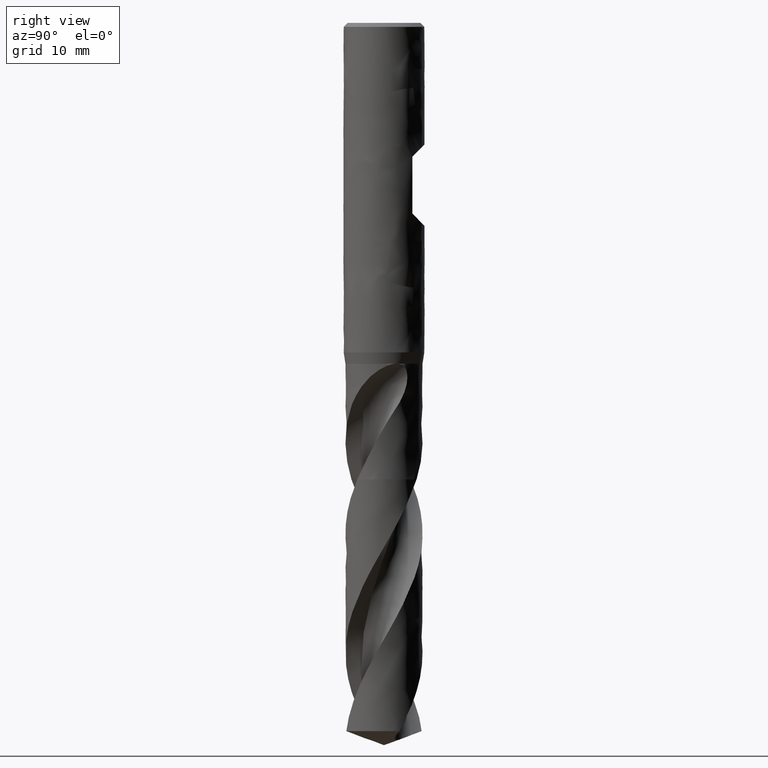
[diagram: clean part render]
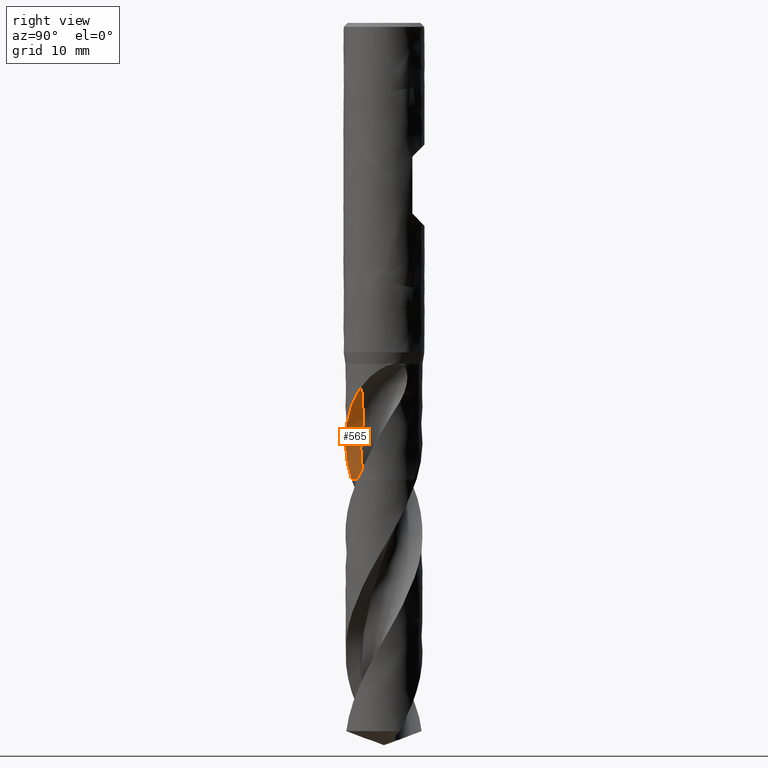
[diagram: same view with one face highlighted and labeled with its STEP entity id]
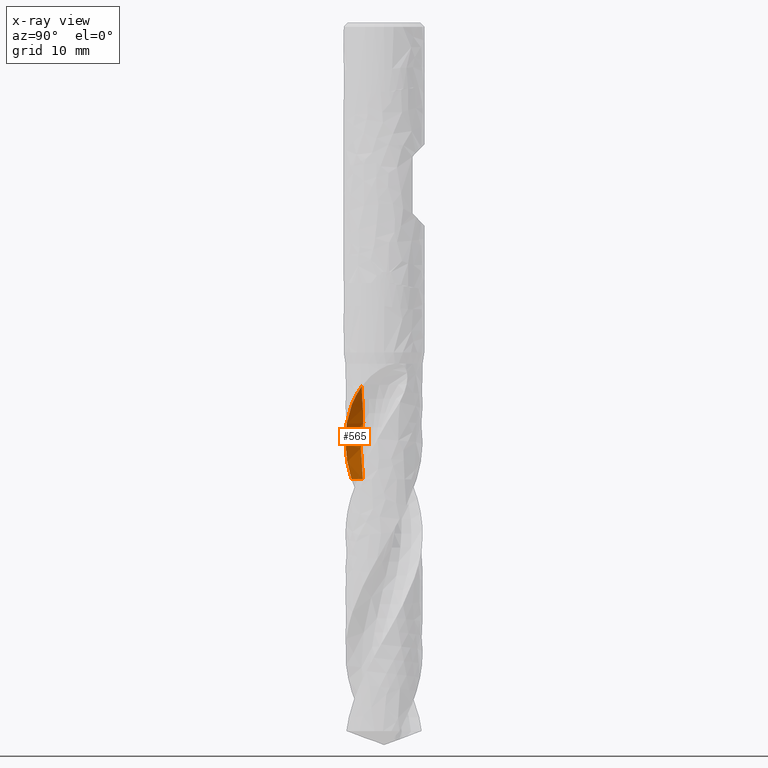
[diagram: x-ray of the same camera — body ghosted, the highlighted face saturated]
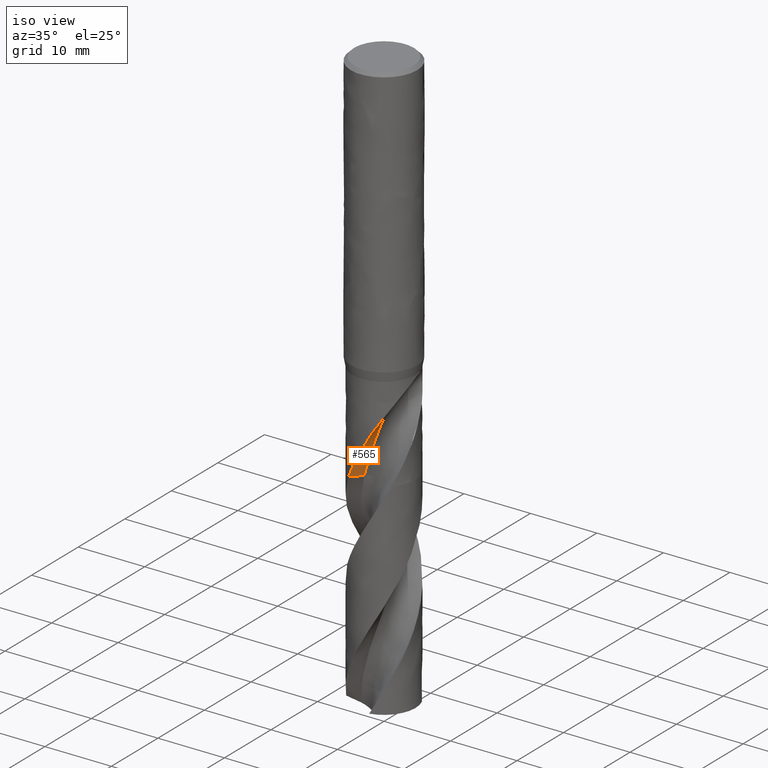
[diagram: same view with one face highlighted and labeled with its STEP entity id]
A machine part, right view. The second image highlights one B-rep face of the part: STEP entity #565.
The next image is the same camera in x-ray: the body ghosted, the highlighted face saturated — about 0% of this face is hidden behind the body in this view.
A second angle (iso view) of the same face is appended — the face is thin or edge-on in the first view.
In plain terms, the highlighted face is a freeform B-spline surface patch.
Its self-contained STEP definition (entity closure, byte-faithful):
#565 = ADVANCED_FACE('', (#566), #721, .T.);
#566 = FACE_OUTER_BOUND('', #567, .T.);
#567 = EDGE_LOOP('', (#568, #578, #600));
#568 = ORIENTED_EDGE('', *, *, #569, .T.);
#569 = EDGE_CURVE('', #570, #572, #574, .T.);
#570 = VERTEX_POINT('', #571);
#571 = CARTESIAN_POINT('', (-2.53960129941274, -4.01409083604508, -56.25));
#572 = VERTEX_POINT('', #573);
#573 = CARTESIAN_POINT('', (-1.16955191055371, -2.59206651483527, -56.25));
#574 = LINE('', #575, #576);
#575 = CARTESIAN_POINT('', (-2.53960129941274, -4.01409083604508, -56.25));
#576 = VECTOR('', #577, 1.97463629512506);
#577 = DIRECTION('', (1.37004938885903, 1.42202432120981, 0.));
#578 = ORIENTED_EDGE('', *, *, #579, .T.);
#579 = EDGE_CURVE('', #572, #580, #582, .T.);
#580 = VERTEX_POINT('', #581);
#581 = CARTESIAN_POINT('', (3.87500785970032, -2.74714653545469, -44.7950544550316));
#582 = (
   BOUNDED_CURVE ()
   B_SPLINE_CURVE (3, (#583, #584, #585, #586, #587, #588, #589, #590, #591, #592, #593, #594, #595, #596, #597, #598, #599), .UNSPECIFIED., .F., .U.)
   B_SPLINE_CURVE_WITH_KNOTS ((4, 1, 1, 1, 1, 1, 1, 1, 1, 1, 1, 1, 1, 1, 4), (32.8, 33.1233333333333, 33.995, 34.8666666666667, 35.7383333333333, 36.61, 37.4816666666667, 38.3533333333333, 39.225, 40.0966666666667, 40.9683333333333, 41.84, 42.7116666666667, 43.5833333333333, 44.2549455449684), .UNSPECIFIED.)
   CURVE ()
   GEOMETRIC_REPRESENTATION_ITEM ()
   RATIONAL_B_SPLINE_CURVE ((1., 1., 1., 1., 1., 1., 1., 1., 1., 1., 1., 1., 1., 1., 1., 1., 1.))
   REPRESENTATION_ITEM ('')
);
#583 = CARTESIAN_POINT('', (-1.16955191055371, -2.59206651483527, -56.25));
#584 = CARTESIAN_POINT('', (-1.13631998266035, -2.60805889382268, -56.1422222222222));
#585 = CARTESIAN_POINT('', (-1.01230462373892, -2.66484629329886, -55.7438888888889));
#586 = CARTESIAN_POINT('', (-0.790749504277909, -2.74798836898601, -55.055));
#587 = CARTESIAN_POINT('', (-0.500230252986754, -2.82292598116442, -54.1833333333333));
#588 = CARTESIAN_POINT('', (-0.202617527297527, -2.8710206353216, -53.3116666666667));
#589 = CARTESIAN_POINT('', (0.0995270356768333, -2.87046200455906, -52.44));
#590 = CARTESIAN_POINT('', (0.396559534550376, -2.81994771806004, -51.5683333333333));
#591 = CARTESIAN_POINT('', (0.679590144418035, -2.71790772741318, -50.6966666666667));
#592 = CARTESIAN_POINT('', (0.939447964579323, -2.58161021433241, -49.825));
#593 = CARTESIAN_POINT('', (1.23566787375242, -2.544055710569, -48.9533333333333));
#594 = CARTESIAN_POINT('', (1.59154995407319, -2.56165621502581, -48.0816666666667));
#595 = CARTESIAN_POINT('', (2.03350561972719, -2.62113658619023, -47.21));
#596 = CARTESIAN_POINT('', (2.58144799561633, -2.69409458099802, -46.3383333333333));
#597 = CARTESIAN_POINT('', (3.19899454810363, -2.74594182788144, -45.5333514850105));
#598 = CARTESIAN_POINT('', (3.66106358143903, -2.75226603121472, -45.0189251922433));
#599 = CARTESIAN_POINT('', (3.87500785970032, -2.74714653545469, -44.7950544550316));
#600 = ORIENTED_EDGE('', *, *, #601, .T.);
#601 = EDGE_CURVE('', #580, #570, #602, .T.);
#602 = B_SPLINE_CURVE_WITH_KNOTS('', 3, (#603, #604, #605, #606, #607, #608, #609, #610, #611, #612, #613, #614, #615, #616, #617, #618, #619, #620, #621, #622, #623, #624, #625, #626, #627, #628, #629, #630, #631, #632, #633, #634, #635, #636, #637, #638, #639, #640, #641, #642, #643, #644, #645, #646, #647, #648, #649, #650, #651, #652, #653, #654, #655, #656, #657, #658, #659, #660, #661, #662, #663, #664, #665, #666, #667, #668, #669, #670, #671, #672, #673, #674, #675, #676, #677, #678, #679, #680, #681, #682, #683, #684, #685, #686, #687, #688, #689, #690, #691, #692, #693, #694, #695, #696, #697, #698, #699, #700, #701, #702, #703, #704, #705, #706, #707, #708, #709, #710, #711, #712, #713, #714, #715, #716, #717, #718, #719, #720), .UNSPECIFIED., .F., .U., (4, 3, 3, 3, 3, 3, 3, 3, 3, 3, 3, 3, 3, 3, 3, 3, 3, 3, 3, 3, 3, 3, 3, 3, 3, 3, 3, 3, 3, 3, 3, 3, 3, 3, 3, 3, 3, 3, 3, 4), (0., 0.441919368770059, 0.883887978597237, 1.32592005331939, 1.62094505582511, 1.91599609785765, 2.35824513799557, 2.65337048426481, 2.94852789174461, 3.2437170731266, 3.53894623674245, 3.83421578993219, 4.12952300043825, 4.79360702586817, 5.08898214664812, 5.38438216924593, 5.67984415056531, 5.97535053454865, 6.17236830462915, 6.36937092926657, 6.56633726911254, 6.76328588636899, 6.9602357106037, 7.15720546595671, 7.35419748122556, 7.79715150308278, 8.09250341991718, 8.15088010544344, 8.20927032151311, 8.87520298871134, 9.31897739998244, 9.76272464354005, 10.2064323456573, 10.6501352559083, 11.0938444833769, 11.2909557164393, 11.9565997734931, 12.2522847985764, 12.9178042994204, 13.5606600033024), .UNSPECIFIED.);
#603 = CARTESIAN_POINT('', (3.87500785970032, -2.74714653545469, -44.7950544550316));
#604 = CARTESIAN_POINT('', (3.82002151844926, -2.82470792570968, -44.9075707875013));
#605 = CARTESIAN_POINT('', (3.7630682393594, -2.90010547270845, -45.0206549034294));
#606 = CARTESIAN_POINT('', (3.70436830101531, -2.97323989789472, -45.1342544859374));
#607 = CARTESIAN_POINT('', (3.64566182200516, -3.04638247211599, -45.247866726328));
#608 = CARTESIAN_POINT('', (3.58518512047453, -3.11729002021129, -45.3620384752409));
#609 = CARTESIAN_POINT('', (3.52316923430061, -3.18587170904255, -45.4767320226931));
#610 = CARTESIAN_POINT('', (3.46114444289763, -3.25446324592541, -45.5914420396723));
#611 = CARTESIAN_POINT('', (3.39755741040932, -3.32075406025826, -45.7067162374187));
#612 = CARTESIAN_POINT('', (3.3326243680225, -3.38468829017719, -45.8225021429814));
#613 = CARTESIAN_POINT('', (3.28928617586775, -3.42735984597751, -45.899781008096));
#614 = CARTESIAN_POINT('', (3.24533995505456, -3.4689903649967, -45.9773031682189));
#615 = CARTESIAN_POINT('', (3.20085140279195, -3.50956554252015, -46.0550560283179));
#616 = CARTESIAN_POINT('', (3.15635892387621, -3.55014430129406, -46.1328157510478));
#617 = CARTESIAN_POINT('', (3.11131722922133, -3.58967368536869, -46.2108179215131));
#618 = CARTESIAN_POINT('', (3.06579419719084, -3.62814083801483, -46.2890529682938));
#619 = CARTESIAN_POINT('', (2.9975601822185, -3.68579886632547, -46.4063186932529));
#620 = CARTESIAN_POINT('', (2.92822909728173, -3.74108306370201, -46.5241419941013));
#621 = CARTESIAN_POINT('', (2.85801270984806, -3.7939772469464, -46.642478140704));
#622 = CARTESIAN_POINT('', (2.81115532006452, -3.82927503784893, -46.7214472125903));
#623 = CARTESIAN_POINT('', (2.76389535318668, -3.86351511856403, -46.8006583576583));
#624 = CARTESIAN_POINT('', (2.71629630592508, -3.89669531506092, -46.8801005919844));
#625 = CARTESIAN_POINT('', (2.66869208769766, -3.92987911611866, -46.9595514565899));
#626 = CARTESIAN_POINT('', (2.62074228874861, -3.96200724942417, -47.0392440260743));
#627 = CARTESIAN_POINT('', (2.57251231010029, -3.99307906437907, -47.1191701019647));
#628 = CARTESIAN_POINT('', (2.5242771394609, -4.02415422423668, -47.1991047819533));
#629 = CARTESIAN_POINT('', (2.47575724428141, -4.05417581642904, -47.279284751517));
#630 = CARTESIAN_POINT('', (2.42701283918621, -4.08314935783952, -47.3596984765999));
#631 = CARTESIAN_POINT('', (2.37826183184971, -4.11212682360422, -47.4401230934111));
#632 = CARTESIAN_POINT('', (2.32927917992059, -4.14006020178889, -47.5207906568271));
#633 = CARTESIAN_POINT('', (2.28012182561183, -4.16695865834647, -47.6016887456789));
#634 = CARTESIAN_POINT('', (2.23095774620664, -4.19386079481555, -47.6825979019989));
#635 = CARTESIAN_POINT('', (2.18161295948381, -4.21973095535435, -47.7637472470857));
#636 = CARTESIAN_POINT('', (2.13214583658185, -4.24457938217047, -47.8451271135352));
#637 = CARTESIAN_POINT('', (2.0826724048713, -4.26943097804029, -47.9265173587973));
#638 = CARTESIAN_POINT('', (2.03307081572433, -4.29326343976738, -48.0081474809567));
#639 = CARTESIAN_POINT('', (1.98340242787633, -4.31608790562638, -48.0900113270253));
#640 = CARTESIAN_POINT('', (1.87170863319318, -4.36741534575208, -48.2741059596666));
#641 = CARTESIAN_POINT('', (1.75963855268986, -4.41365855367287, -48.4594582709068));
#642 = CARTESIAN_POINT('', (1.64783716626583, -4.45501208454848, -48.6459822080455));
#643 = CARTESIAN_POINT('', (1.59810950116053, -4.4734055463836, -48.7289453999774));
#644 = CARTESIAN_POINT('', (1.54842579164219, -4.49083603758736, -48.8121541642686));
#645 = CARTESIAN_POINT('', (1.49883898213842, -4.50732533833784, -48.8956005699111));
#646 = CARTESIAN_POINT('', (1.44924799218202, -4.52381602923101, -48.9790540105644));
#647 = CARTESIAN_POINT('', (1.39975106833242, -4.53936650635805, -49.0627545358585));
#648 = CARTESIAN_POINT('', (1.35038460932605, -4.55400498538324, -49.1466851833293));
#649 = CARTESIAN_POINT('', (1.3010077959444, -4.56864653475838, -49.2306334348462));
#650 = CARTESIAN_POINT('', (1.25175561745423, -4.58237729941851, -49.3148189998397));
#651 = CARTESIAN_POINT('', (1.20267571102205, -4.59522264249707, -49.3992341261286));
#652 = CARTESIAN_POINT('', (1.15358842875565, -4.60806991600149, -49.4836619385048));
#653 = CARTESIAN_POINT('', (1.10466869265312, -4.62003252190295, -49.5683268445344));
#654 = CARTESIAN_POINT('', (1.05598407572301, -4.63113351479091, -49.6532341189619));
#655 = CARTESIAN_POINT('', (1.02352543799242, -4.63853468438658, -49.7098428515578));
#656 = CARTESIAN_POINT('', (0.991170133447247, -4.64555318491162, -49.7665623774444));
#657 = CARTESIAN_POINT('', (0.958944322225092, -4.65219580272286, -49.8233977695916));
#658 = CARTESIAN_POINT('', (0.926720988313431, -4.65883790989292, -49.8802287926039));
#659 = CARTESIAN_POINT('', (0.894628111035233, -4.66510414399208, -49.9371791512655));
#660 = CARTESIAN_POINT('', (0.862670389416347, -4.67100629406814, -49.9942413512413));
#661 = CARTESIAN_POINT('', (0.8307185539082, -4.6769073570608, -50.0512930412555));
#662 = CARTESIAN_POINT('', (0.798900746527828, -4.68244481300761, -50.1084586698478));
#663 = CARTESIAN_POINT('', (0.767200400556932, -4.68763304295305, -50.1657195465929));
#664 = CARTESIAN_POINT('', (0.735502906912071, -4.69282080607319, -50.2229752711327));
#665 = CARTESIAN_POINT('', (0.703921835782159, -4.6976597181134, -50.2803281144411));
#666 = CARTESIAN_POINT('', (0.672418148888563, -4.70216480283765, -50.3377483539553));
#667 = CARTESIAN_POINT('', (0.640914268928035, -4.70666991517082, -50.3951689453633));
#668 = CARTESIAN_POINT('', (0.609486829232246, -4.71084147247727, -50.4526585306954));
#669 = CARTESIAN_POINT('', (0.578074416882263, -4.71469298772955, -50.5101767103255));
#670 = CARTESIAN_POINT('', (0.546658825628676, -4.71854489275119, -50.5677007107358));
#671 = CARTESIAN_POINT('', (0.515257350217558, -4.72207693515178, -50.6252546914214));
#672 = CARTESIAN_POINT('', (0.48378772103341, -4.7252988731907, -50.6827878881308));
#673 = CARTESIAN_POINT('', (0.452314535408344, -4.72852117534678, -50.740327586773));
#674 = CARTESIAN_POINT('', (0.420763666554389, -4.73143363673095, -50.7978430406509));
#675 = CARTESIAN_POINT('', (0.389147727424566, -4.73403253540153, -50.8553359939847));
#676 = CARTESIAN_POINT('', (0.318056483582855, -4.73987638961544, -50.9846139998619));
#677 = CARTESIAN_POINT('', (0.246636983955777, -4.74413394207812, -51.1137934795464));
#678 = CARTESIAN_POINT('', (0.175015137948862, -4.74677466302001, -51.2428835882073));
#679 = CARTESIAN_POINT('', (0.127259279639533, -4.74853543717156, -51.3289580093797));
#680 = CARTESIAN_POINT('', (0.0794090762336166, -4.74957795109174, -51.4149978679296));
#681 = CARTESIAN_POINT('', (0.0314881625818635, -4.74989562997096, -51.5009979459734));
#682 = CARTESIAN_POINT('', (0.0220165324791625, -4.74995841960926, -51.5179959718031));
#683 = CARTESIAN_POINT('', (0.0125420447809011, -4.74999289628025, -51.5349925338599));
#684 = CARTESIAN_POINT('', (0.00306483196451335, -4.74999901124253, -51.5519875625827));
#685 = CARTESIAN_POINT('', (-0.00641457747949023, -4.75000512762213, -51.5689865304119));
#686 = CARTESIAN_POINT('', (-0.0158967405701204, -4.74998286912729, -51.5859839969245));
#687 = CARTESIAN_POINT('', (-0.0253815070313617, -4.7499321867897, -51.6029799018592));
#688 = CARTESIAN_POINT('', (-0.133554010105328, -4.74935416145389, -51.796815942663));
#689 = CARTESIAN_POINT('', (-0.242086294019883, -4.74507721495851, -51.9904768411935));
#690 = CARTESIAN_POINT('', (-0.350708929586716, -4.73703528028958, -52.1838947451693));
#691 = CARTESIAN_POINT('', (-0.423094545315997, -4.73167617268159, -52.3127875307226));
#692 = CARTESIAN_POINT('', (-0.495531454171268, -4.72464447402543, -52.441593034544));
#693 = CARTESIAN_POINT('', (-0.567924976725479, -4.71592633750903, -52.5702978112791));
#694 = CARTESIAN_POINT('', (-0.640314067373681, -4.70720873471389, -52.698994708753));
#695 = CARTESIAN_POINT('', (-0.712667000982352, -4.69680382160137, -52.8276088802328));
#696 = CARTESIAN_POINT('', (-0.78487528884677, -4.68470605064583, -52.956133879997));
#697 = CARTESIAN_POINT('', (-0.857077142373292, -4.67260935769877, -53.0846474271522));
#698 = CARTESIAN_POINT('', (-0.929143615659576, -4.65881854596651, -53.213088948155));
#699 = CARTESIAN_POINT('', (-1.00096554429149, -4.64333586757853, -53.341451975047));
#700 = CARTESIAN_POINT('', (-1.0727866972752, -4.6278533563973, -53.4698136156695));
#701 = CARTESIAN_POINT('', (-1.14437987306021, -4.61067514831322, -53.5981097789823));
#702 = CARTESIAN_POINT('', (-1.21561848271048, -4.59181573067699, -53.7263442509983));
#703 = CARTESIAN_POINT('', (-1.28685810662004, -4.57295604452991, -53.8545805487517));
#704 = CARTESIAN_POINT('', (-1.35775220235587, -4.55241159601345, -53.982772515672));
#705 = CARTESIAN_POINT('', (-1.42811147146333, -4.53023152003016, -54.110963534538));
#706 = CARTESIAN_POINT('', (-1.45936753158692, -4.52037835075661, -54.167910490409));
#707 = CARTESIAN_POINT('', (-1.49051663917599, -4.51020322689187, -54.224861451886));
#708 = CARTESIAN_POINT('', (-1.52154727834062, -4.49971042176874, -54.2818174216858));
#709 = CARTESIAN_POINT('', (-1.62633765596447, -4.46427624958324, -54.4741575649742));
#710 = CARTESIAN_POINT('', (-1.72980745479725, -4.42520901278042, -54.66658647725));
#711 = CARTESIAN_POINT('', (-1.83175382535873, -4.38259944819096, -54.8589993070095));
#712 = CARTESIAN_POINT('', (-1.87703931212478, -4.36367189968976, -54.9444708015581));
#713 = CARTESIAN_POINT('', (-1.92203008484393, -4.34404301938202, -55.0299465220261));
#714 = CARTESIAN_POINT('', (-1.96671062955282, -4.32371938261538, -55.1154158293672));
#715 = CARTESIAN_POINT('', (-2.06727633728092, -4.2779755151589, -55.3077877316748));
#716 = CARTESIAN_POINT('', (-2.16628440109863, -4.22870233737876, -55.5001733071012));
#717 = CARTESIAN_POINT('', (-2.26343762006472, -4.17604479622474, -55.6925306495198));
#718 = CARTESIAN_POINT('', (-2.35728235471735, -4.1251804704757, -55.8783373983837));
#719 = CARTESIAN_POINT('', (-2.44941858521597, -4.07114687874897, -56.0641779135023));
#720 = CARTESIAN_POINT('', (-2.53960129941274, -4.01409083604508, -56.25));
#721 = B_SPLINE_SURFACE_WITH_KNOTS('', 3, 1, ((#722, #723), (#724, #725), (#726, #727), (#728, #729), (#730, #731), (#732, #733), (#734, #735), (#736, #737), (#738, #739), (#740, #741), (#742, #743), (#744, #745), (#746, #747), (#748, #749), (#750, #751), (#752, #753), (#754, #755)), .UNSPECIFIED., .F., .F., .U., (4, 1, 1, 1, 1, 1, 1, 1, 1, 1, 1, 1, 1, 1, 4), (2, 2), (32.7999999999995, 33.1233333333333, 33.995, 34.8666666666667, 35.7383333333333, 36.61, 37.4816666666667, 38.3533333333333, 39.225, 40.0966666666667, 40.9683333333333, 41.84, 42.7116666666667, 43.5833333333333, 44.2549455449684), (0., 0.194392659555938), .UNSPECIFIED.);
#722 = CARTESIAN_POINT('', (-1.16955191055387, -2.5920665148352, -56.2500000000005));
#723 = CARTESIAN_POINT('', (-2.63671807717111, -4.11489188824973, -56.2500000000005));
#724 = CARTESIAN_POINT('', (-1.13631998266045, -2.60805889382264, -56.1422222222226));
#725 = CARTESIAN_POINT('', (-2.584212101257, -4.15039316517011, -56.1422222222226));
#726 = CARTESIAN_POINT('', (-1.01230462373897, -2.66484629329884, -55.7438888888891));
#727 = CARTESIAN_POINT('', (-2.38754618569859, -4.27795800542399, -55.7438888888891));
#728 = CARTESIAN_POINT('', (-0.790749504277909, -2.74798836898601, -55.055));
#729 = CARTESIAN_POINT('', (-2.0316218284664, -4.47472264339048, -55.055));
#730 = CARTESIAN_POINT('', (-0.500230252986754, -2.82292598116442, -54.1833333333333));
#731 = CARTESIAN_POINT('', (-1.55638545268207, -4.67478075142598, -54.1833333333333));
#732 = CARTESIAN_POINT('', (-0.202617527297527, -2.8710206353216, -53.3116666666667));
#733 = CARTESIAN_POINT('', (-1.06237620366356, -4.83097107013213, -53.3116666666667));
#734 = CARTESIAN_POINT('', (0.0995270356768333, -2.87046200455906, -52.44));
#735 = CARTESIAN_POINT('', (-0.548496264502823, -4.90556871651687, -52.44));
#736 = CARTESIAN_POINT('', (0.396559534550376, -2.81994771806004, -51.5683333333333));
#737 = CARTESIAN_POINT('', (-0.0308176422932987, -4.89394791513927, -51.5683333333333));
#738 = CARTESIAN_POINT('', (0.679590144418035, -2.71790772741318, -50.6966666666667));
#739 = CARTESIAN_POINT('', (0.475936751201989, -4.79121630237819, -50.6966666666667));
#740 = CARTESIAN_POINT('', (0.939447964579323, -2.58161021433241, -49.825));
#741 = CARTESIAN_POINT('', (0.951855822102447, -4.62444211845288, -49.825));
#742 = CARTESIAN_POINT('', (1.23566787375242, -2.544055710569, -48.9533333333333));
#743 = CARTESIAN_POINT('', (1.46491235503326, -4.63465382327162, -48.9533333333333));
#744 = CARTESIAN_POINT('', (1.59154995407319, -2.56165621502581, -48.0816666666667));
#745 = CARTESIAN_POINT('', (2.06562241535383, -4.75356407771168, -48.0816666666667));
#746 = CARTESIAN_POINT('', (2.03350561972719, -2.62113658619023, -47.21));
#747 = CARTESIAN_POINT('', (2.80221295219673, -4.96520483498098, -47.21));
#748 = CARTESIAN_POINT('', (2.58144799561633, -2.69409458099802, -46.3383333333333));
#749 = CARTESIAN_POINT('', (3.71564413417427, -5.22626242777744, -46.3383333333333));
#750 = CARTESIAN_POINT('', (3.19899454810363, -2.74594182788144, -45.5333514850105));
#751 = CARTESIAN_POINT('', (4.7527026670397, -5.46882880560732, -45.5333514850105));
#752 = CARTESIAN_POINT('', (3.66106358143903, -2.75226603121472, -45.0189251922433));
#753 = CARTESIAN_POINT('', (5.53678325913727, -5.59511654926774, -45.0189251922433));
#754 = CARTESIAN_POINT('', (3.87500785970032, -2.74714653545469, -44.7950544550316));
#755 = CARTESIAN_POINT('', (5.9018355150131, -5.639905913448, -44.7950544550316));